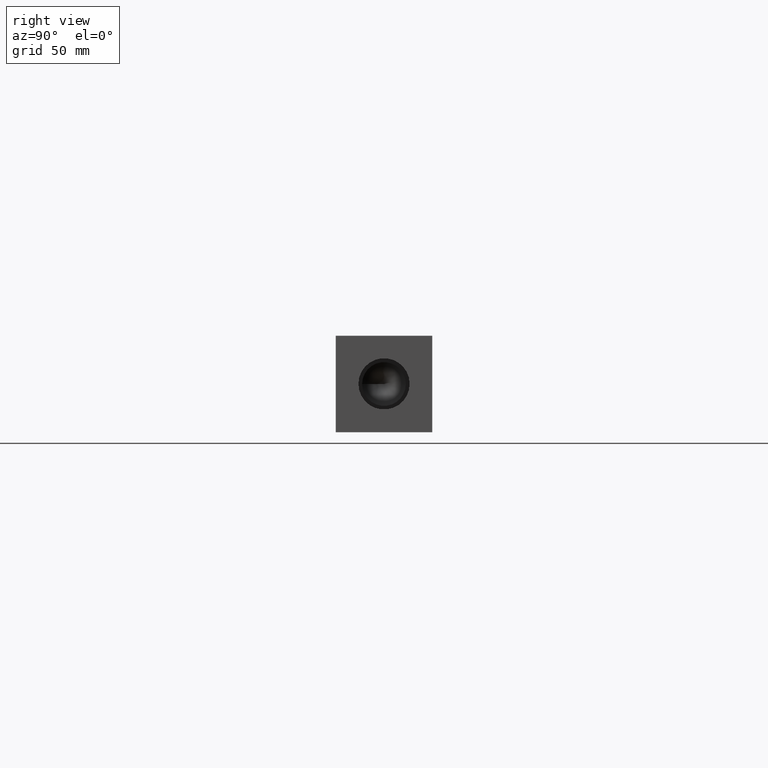
[diagram: clean part render]
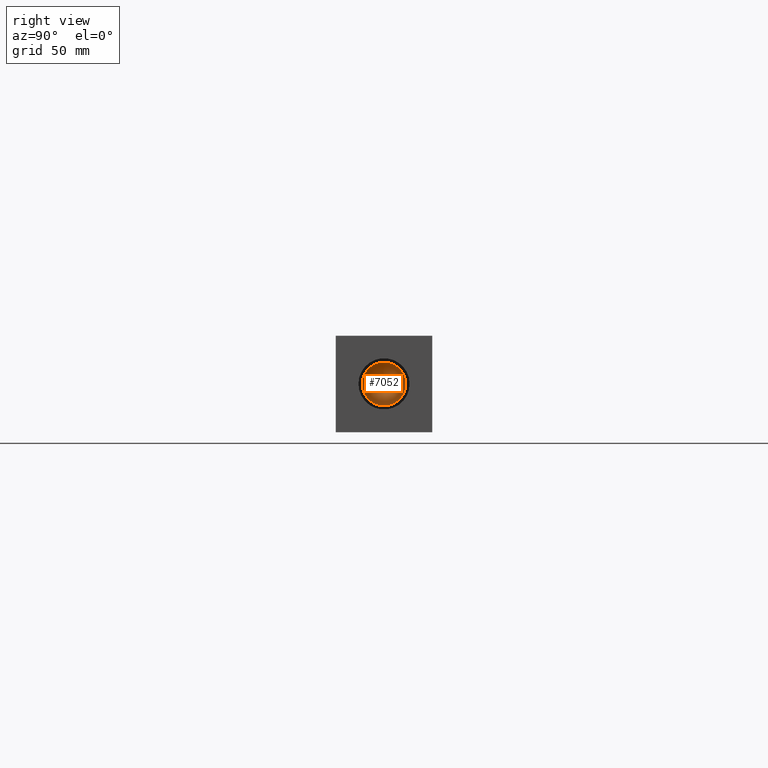
[diagram: same view with one face highlighted and labeled with its STEP entity id]
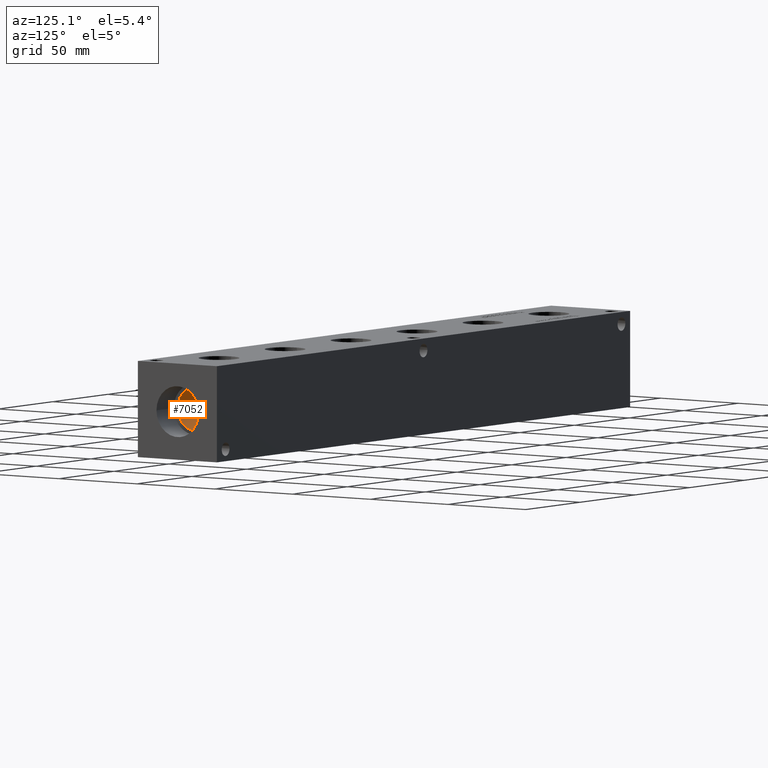
[diagram: same view with one face highlighted and labeled with its STEP entity id]
A machine part, right view. The second image highlights one B-rep face of the part: STEP entity #7052.
A second angle (auxiliary view) of the same face is appended — the face is thin or edge-on in the first view.
In plain terms, the highlighted conical surface has half-angle 60 deg.
Its self-contained STEP definition (entity closure, byte-faithful):
#20=CONICAL_SURFACE('',#7384,5.7531,1.0471975511966);
#122=CIRCLE('',#7385,11.5062);
#123=CIRCLE('',#7386,11.5062);
#751=FACE_OUTER_BOUND('',#1157,.T.);
#1157=EDGE_LOOP('',(#6218,#6219,#6220,#6221));
#1827=LINE('',#12146,#2484);
#2484=VECTOR('',#8669,5.7531);
#3360=VERTEX_POINT('',#12142);
#3361=VERTEX_POINT('',#12143);
#3362=VERTEX_POINT('',#12145);
#4323=EDGE_CURVE('',#3360,#3361,#122,.T.);
#4324=EDGE_CURVE('',#3361,#3362,#1827,.T.);
#4325=EDGE_CURVE('',#3361,#3360,#123,.T.);
#6218=ORIENTED_EDGE('',*,*,#4323,.T.);
#6219=ORIENTED_EDGE('',*,*,#4324,.T.);
#6220=ORIENTED_EDGE('',*,*,#4324,.F.);
#6221=ORIENTED_EDGE('',*,*,#4325,.T.);
#7052=ADVANCED_FACE('',(#751),#20,.F.);
#7384=AXIS2_PLACEMENT_3D('',#12141,#8665,#8666);
#7385=AXIS2_PLACEMENT_3D('',#12144,#8667,#8668);
#7386=AXIS2_PLACEMENT_3D('',#12147,#8670,#8671);
#8665=DIRECTION('center_axis',(1.,0.,0.));
#8666=DIRECTION('ref_axis',(0.,1.,0.));
#8667=DIRECTION('center_axis',(1.,0.,0.));
#8668=DIRECTION('ref_axis',(0.,1.,0.));
#8669=DIRECTION('',(-0.5,0.866025403784439,1.06057523872491E-16));
#8670=DIRECTION('center_axis',(1.,0.,0.));
#8671=DIRECTION('ref_axis',(0.,1.,0.));
#12141=CARTESIAN_POINT('Origin',(357.989536166325,25.4,25.4));
#12142=CARTESIAN_POINT('',(361.31109,36.9062,25.4));
#12143=CARTESIAN_POINT('',(361.31109,13.8938,25.4));
#12144=CARTESIAN_POINT('Origin',(361.31109,25.4,25.4));
#12145=CARTESIAN_POINT('',(354.66798233265,25.4,25.4));
#12146=CARTESIAN_POINT('',(357.989536166325,19.6469,25.4));
#12147=CARTESIAN_POINT('Origin',(361.31109,25.4,25.4));